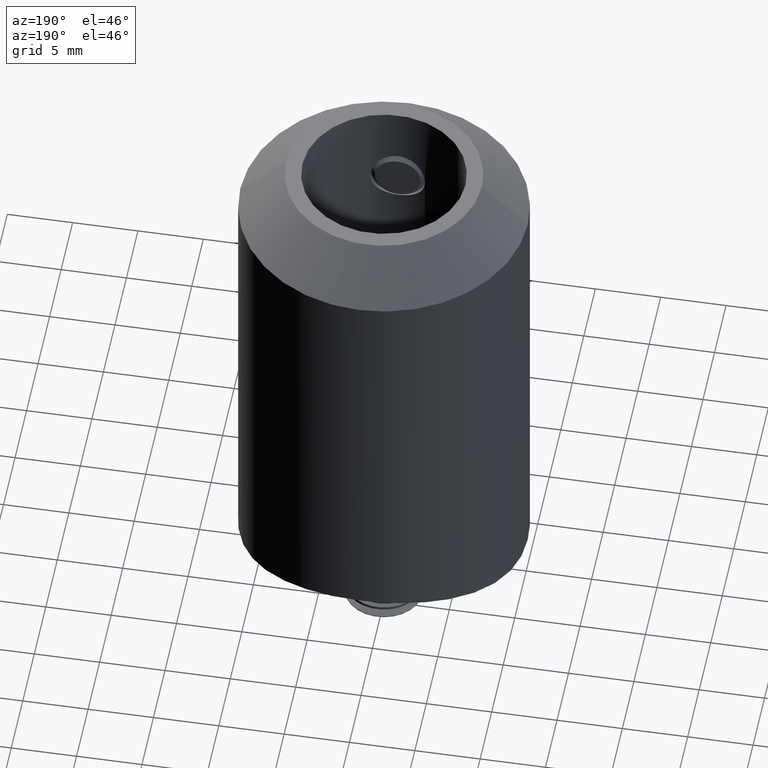
[diagram: clean part render]
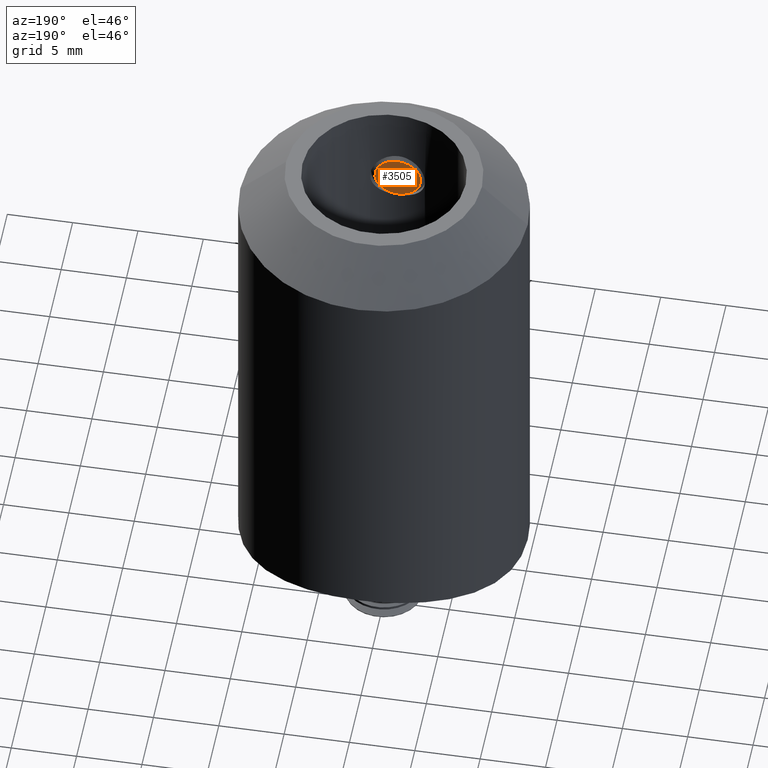
[diagram: same view with one face highlighted and labeled with its STEP entity id]
A machine part, auxiliary view. The second image highlights one B-rep face of the part: STEP entity #3505.
In plain terms, the highlighted planar face has unit normal (0, 1, 0).
Its self-contained STEP definition (entity closure, byte-faithful):
#3505 = ADVANCED_FACE ( 'NONE', ( #19312 ), #7848, .T. ) ;
#5380 = ORIENTED_EDGE ( 'NONE', *, *, #16787, .F. ) ;
#5487 = DIRECTION ( 'NONE',  ( 0.000000000000000000, 5.551115123125783935E-17, 1.000000000000000000 ) ) ;
#6483 = DIRECTION ( 'NONE',  ( 0.000000000000000000, -5.551115123125783935E-17, -1.000000000000000000 ) ) ;
#7137 = DIRECTION ( 'NONE',  ( -1.000000000000000000, -0.000000000000000000, 0.000000000000000000 ) ) ;
#7848 = PLANE ( 'NONE',  #12623 ) ;
#7931 = AXIS2_PLACEMENT_3D ( 'NONE', #12372, #20589, #20895 ) ;
#9330 = CARTESIAN_POINT ( 'NONE',  ( 5.000000000000000888, 9.714451465470119729E-17, 1.749999999999999556 ) ) ;
#10227 = CARTESIAN_POINT ( 'NONE',  ( 5.000000000000000888, 0.000000000000000000, 0.000000000000000000 ) ) ;
#11107 = VERTEX_POINT ( 'NONE', #21812 ) ;
#12372 = CARTESIAN_POINT ( 'NONE',  ( 5.000000000000000888, 0.000000000000000000, 0.000000000000000000 ) ) ;
#12623 = AXIS2_PLACEMENT_3D ( 'NONE', #18402, #14955, #6483 ) ;
#13011 = CIRCLE ( 'NONE', #20471, 1.749999999999999556 ) ;
#14955 = DIRECTION ( 'NONE',  ( 1.000000000000000000, 0.000000000000000000, 0.000000000000000000 ) ) ;
#15391 = CIRCLE ( 'NONE', #7931, 1.749999999999999556 ) ;
#16787 = EDGE_CURVE ( 'NONE', #11107, #20501, #13011, .T. ) ;
#17057 = EDGE_LOOP ( 'NONE', ( #20245, #5380 ) ) ;
#17245 = EDGE_CURVE ( 'NONE', #20501, #11107, #15391, .T. ) ;
#18402 = CARTESIAN_POINT ( 'NONE',  ( 5.000000000000000888, 1.749999999999994671, -3.122502256758252770E-14 ) ) ;
#19312 = FACE_OUTER_BOUND ( 'NONE', #17057, .T. ) ;
#20245 = ORIENTED_EDGE ( 'NONE', *, *, #17245, .F. ) ;
#20471 = AXIS2_PLACEMENT_3D ( 'NONE', #10227, #7137, #5487 ) ;
#20501 = VERTEX_POINT ( 'NONE', #9330 ) ;
#20589 = DIRECTION ( 'NONE',  ( -1.000000000000000000, -0.000000000000000000, 0.000000000000000000 ) ) ;
#20895 = DIRECTION ( 'NONE',  ( 0.000000000000000000, 5.551115123125783935E-17, 1.000000000000000000 ) ) ;
#21812 = CARTESIAN_POINT ( 'NONE',  ( 5.000000000000000888, 1.361410524371744147E-16, -1.750000000000000222 ) ) ;